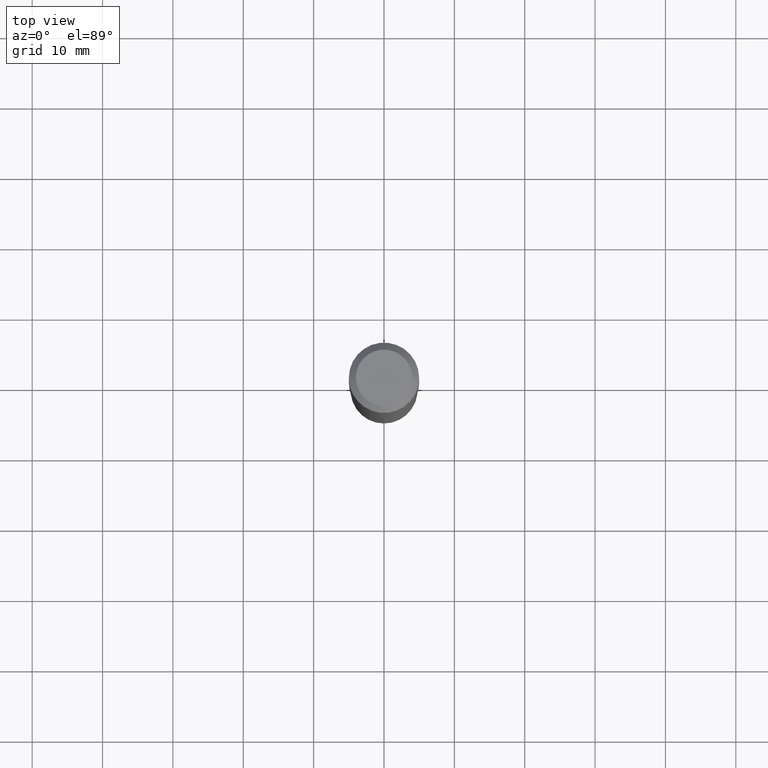
[diagram: clean part render]
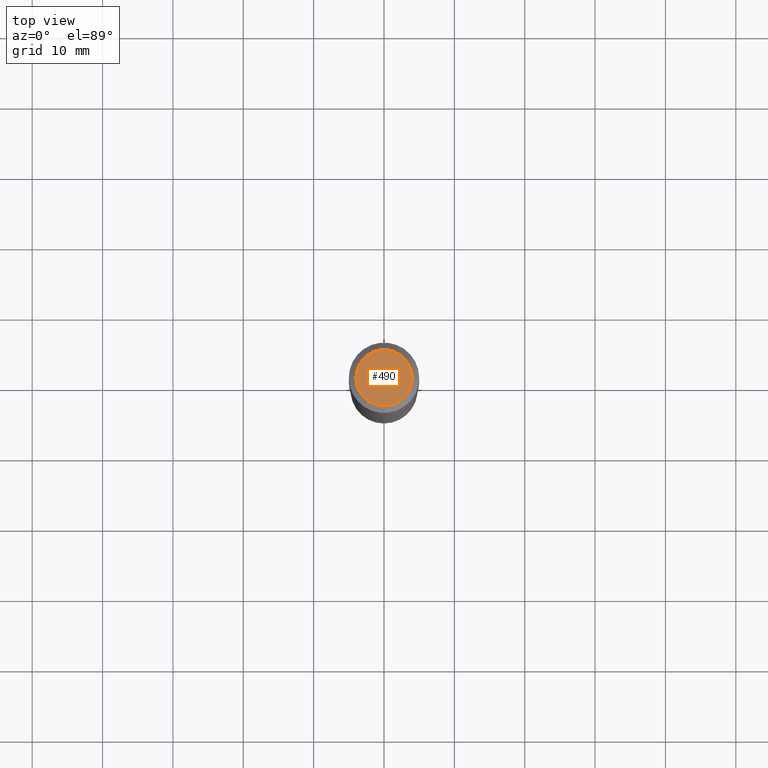
[diagram: same view with one face highlighted and labeled with its STEP entity id]
A machine part, top view. The second image highlights one B-rep face of the part: STEP entity #490.
In plain terms, the highlighted planar face has unit normal (0, -0, -1).
Its self-contained STEP definition (entity closure, byte-faithful):
#30 = DIRECTION ( 'NONE',  ( -2.445468806185136597E-29, 3.491481338843145583E-15, 1.000000000000000000 ) ) ;
#41 = VERTEX_POINT ( 'NONE', #66 ) ;
#42 = EDGE_LOOP ( 'NONE', ( #124, #191 ) ) ;
#66 = CARTESIAN_POINT ( 'NONE',  ( 0.1574800000000000089, -1.284169937930321189E-15, 3.855188123724205385E-18 ) ) ;
#98 = CARTESIAN_POINT ( 'NONE',  ( -4.713871149261283817E-47, 6.730158695841841775E-33, 1.927594061857935365E-18 ) ) ;
#104 = AXIS2_PLACEMENT_3D ( 'NONE', #271, #474, #360 ) ;
#124 = ORIENTED_EDGE ( 'NONE', *, *, #368, .T. ) ;
#135 = FACE_OUTER_BOUND ( 'NONE', #42, .T. ) ;
#177 = CARTESIAN_POINT ( 'NONE',  ( -9.427742298522567634E-47, 1.346031739168368355E-32, 3.855188123715870730E-18 ) ) ;
#191 = ORIENTED_EDGE ( 'NONE', *, *, #427, .T. ) ;
#200 = AXIS2_PLACEMENT_3D ( 'NONE', #98, #247, #400 ) ;
#225 = VERTEX_POINT ( 'NONE', #488 ) ;
#247 = DIRECTION ( 'NONE',  ( 2.438088387897960049E-29, -3.491481338843145188E-15, -1.000000000000000000 ) ) ;
#269 = AXIS2_PLACEMENT_3D ( 'NONE', #177, #30, #317 ) ;
#271 = CARTESIAN_POINT ( 'NONE',  ( -9.427742298522567634E-47, 1.346031739168368355E-32, 3.855188123715870730E-18 ) ) ;
#283 = PLANE ( 'NONE',  #200 ) ;
#290 = CIRCLE ( 'NONE', #104, 0.1574800000000000089 ) ;
#310 = CIRCLE ( 'NONE', #269, 0.1574800000000000089 ) ;
#317 = DIRECTION ( 'NONE',  ( 1.000000000000000000, -6.982962677686265922E-15, 4.876223630392693006E-29 ) ) ;
#360 = DIRECTION ( 'NONE',  ( 1.000000000000000000, -6.982962677686265922E-15, 4.876223630392693006E-29 ) ) ;
#368 = EDGE_CURVE ( 'NONE', #225, #41, #310, .T. ) ;
#400 = DIRECTION ( 'NONE',  ( -1.000000000000000000, 6.982962677686265922E-15, -4.876176775795935793E-29 ) ) ;
#427 = EDGE_CURVE ( 'NONE', #41, #225, #290, .T. ) ;
#474 = DIRECTION ( 'NONE',  ( -2.445468806185136597E-29, 3.491481338843145583E-15, 1.000000000000000000 ) ) ;
#488 = CARTESIAN_POINT ( 'NONE',  ( -0.1574800000000000089, 1.168406772637159618E-15, 3.855188123707939751E-18 ) ) ;
#490 = ADVANCED_FACE ( 'NONE', ( #135 ), #283, .F. ) ;